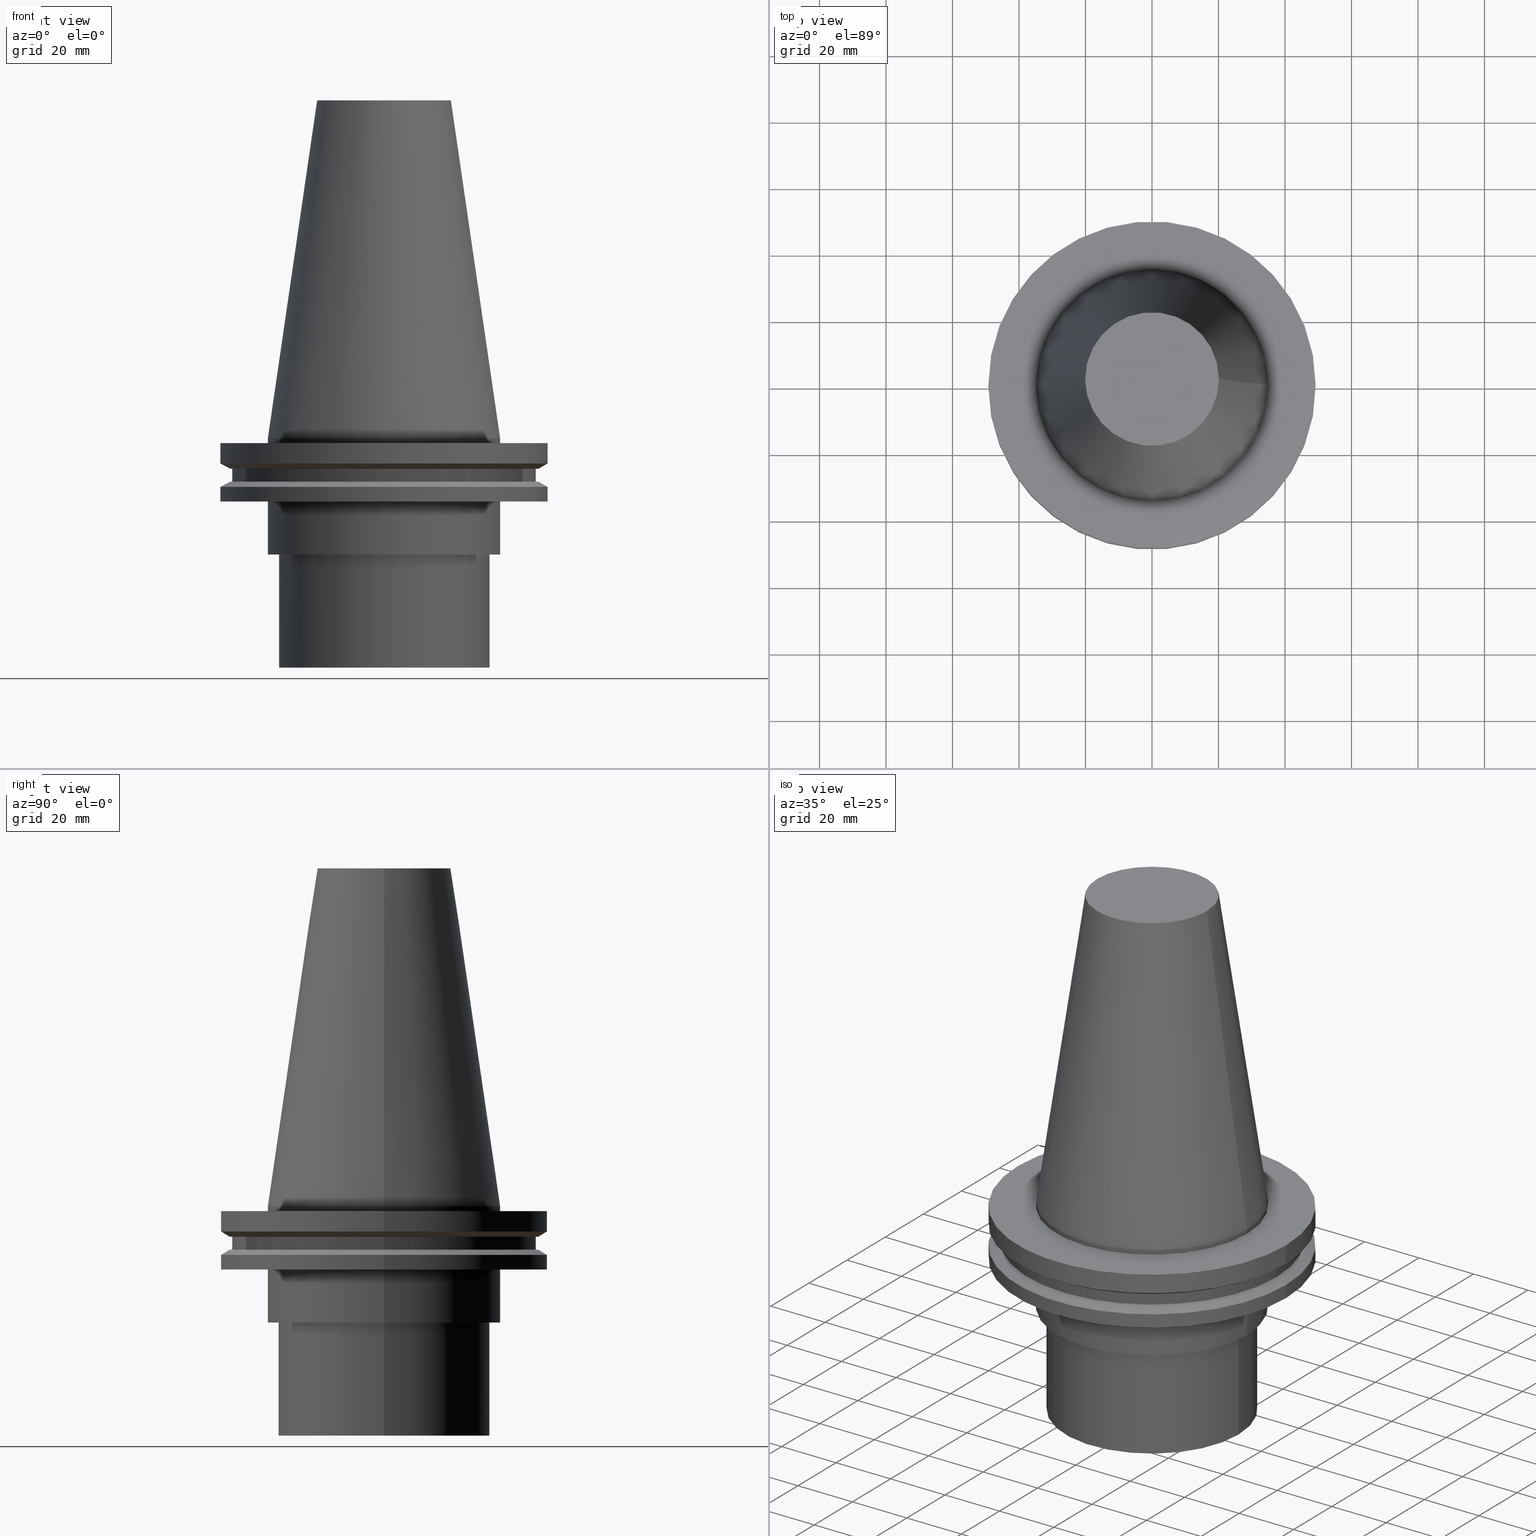
[diagram: canonical four-view strip — front | top / right | iso, engineering-drawing reading convention]
A machine part, canonical four-view strip (front | top / right | iso — engineering-drawing reading convention). The complete STEP part file that produces these views, byte-faithful:
ISO-10303-21;
HEADER;
FILE_DESCRIPTION (( 'STEP AP203' ),
    '1' );
FILE_NAME ('11.368.662N.stp',
    '2022-03-09T15:21:55',
    ( '' ),
    ( '' ),
    'SwSTEP 2.0',
    'SolidWorks 2021',
    '' );
FILE_SCHEMA (( 'CONFIG_CONTROL_DESIGN' ));
ENDSEC;

DATA;
#1 = DIRECTION ( 'NONE',  ( 1.000000000000000000, 0.000000000000000000, 0.000000000000000000 ) ) ;
#2 = CLOSED_SHELL ( 'NONE', ( #291, #19, #306, #176, #315, #102, #114, #87, #389, #361, #204, #362, #218, #357, #192, #34 ) ) ;
#3 = DIRECTION ( 'NONE',  ( -1.000000000000000000, 0.000000000000000000, -0.000000000000000000 ) ) ;
#4 = CARTESIAN_POINT ( 'NONE',  ( 0.000000000000000000, 46.43919780457007818, -9.204999999999998295 ) ) ;
#5 = AXIS2_PLACEMENT_3D ( 'NONE', #68, #184, #158 ) ;
#6 = EDGE_LOOP ( 'NONE', ( #42 ) ) ;
#7 = VERTEX_POINT ( 'NONE', #248 ) ;
#8 = AXIS2_PLACEMENT_3D ( 'NONE', #233, #394, #293 ) ;
#9 = DIRECTION ( 'NONE',  ( 1.000000000000000000, 0.000000000000000000, 0.000000000000000000 ) ) ;
#10 = VERTEX_POINT ( 'NONE', #140 ) ;
#11 = ORIENTED_EDGE ( 'NONE', *, *, #209, .F. ) ;
#12 = CC_DESIGN_DATE_AND_TIME_ASSIGNMENT ( #294, #327, ( #67 ) ) ;
#13 = VERTEX_POINT ( 'NONE', #253 ) ;
#14 = ORIENTED_EDGE ( 'NONE', *, *, #49, .F. ) ;
#15 = AXIS2_PLACEMENT_3D ( 'NONE', #266, #207, #65 ) ;
#16 = CARTESIAN_POINT ( 'NONE',  ( 49.21499999999998920, 0.000000000000000000, -14.65761014474876944 ) ) ;
#17 = ORIENTED_EDGE ( 'NONE', *, *, #385, .T. ) ;
#18 = VERTEX_POINT ( 'NONE', #197 ) ;
#19 = ADVANCED_FACE ( 'NONE', ( #134 ), #105, .F. ) ;
#20 = EDGE_LOOP ( 'NONE', ( #379 ) ) ;
#21 = CARTESIAN_POINT ( 'NONE',  ( 34.92499999999999716, 0.000000000000000000, -19.04999999999999716 ) ) ;
#22 = EDGE_LOOP ( 'NONE', ( #377 ) ) ;
#23 = AXIS2_PLACEMENT_3D ( 'NONE', #343, #79, #191 ) ;
#24 = CYLINDRICAL_SURFACE ( 'NONE', #77, 34.92499999999999716 ) ;
#25 = CALENDAR_DATE ( 2022, 9, 3 ) ;
#26 = CARTESIAN_POINT ( 'NONE',  ( 0.000000000000000000, 0.000000000000000000, -9.204999999999991189 ) ) ;
#27 = EDGE_CURVE ( 'NONE', #7, #7, #180, .T. ) ;
#28 = PERSON_AND_ORGANIZATION ( #47, #216 ) ;
#29 = EDGE_CURVE ( 'NONE', #367, #367, #313, .T. ) ;
#30 = CARTESIAN_POINT ( 'NONE',  ( 0.000000000000000000, 0.000000000000000000, -14.65761014474876944 ) ) ;
#31 = DIRECTION ( 'NONE',  ( -0.000000000000000000, -0.000000000000000000, 1.000000000000000000 ) ) ;
#32 = DATE_AND_TIME ( #199, #52 ) ;
#33 = FACE_BOUND ( 'NONE', #83, .T. ) ;
#34 = ADVANCED_FACE ( 'NONE', ( #194 ), #329, .F. ) ;
#35 = EDGE_CURVE ( 'NONE', #169, #169, #241, .T. ) ;
#36 = PRODUCT_DEFINITION_SHAPE ( 'NONE', 'NONE',  #395 ) ;
#37 = APPROVAL_PERSON_ORGANIZATION ( #132, #101, #371 ) ;
#38 = FACE_BOUND ( 'NONE', #173, .T. ) ;
#39 = DIRECTION ( 'NONE',  ( 1.000000000000000000, 0.000000000000000000, 0.000000000000000000 ) ) ;
#40 = AXIS2_PLACEMENT_3D ( 'NONE', #151, #115, #122 ) ;
#41 = CARTESIAN_POINT ( 'NONE',  ( 0.000000000000000000, 0.000000000000000000, -13.05499999999999794 ) ) ;
#42 = ORIENTED_EDGE ( 'NONE', *, *, #144, .T. ) ;
#43 = DIRECTION ( 'NONE',  ( -0.000000000000000000, -0.000000000000000000, 1.000000000000000000 ) ) ;
#44 = AXIS2_PLACEMENT_3D ( 'NONE', #311, #95, #246 ) ;
#45 = CARTESIAN_POINT ( 'NONE',  ( 0.000000000000000000, 0.000000000000000000, -35.00000000000000000 ) ) ;
#46 = AXIS2_PLACEMENT_3D ( 'NONE', #80, #322, #221 ) ;
#47 = PERSON ( 'UNSPECIFIED', 'UNSPECIFIED', 'UNSPECIFIED', ('UNSPECIFIED'), ('UNSPECIFIED'), ('UNSPECIFIED') ) ;
#48 = PERSON_AND_ORGANIZATION_ROLE ( 'design_owner' ) ;
#49 = EDGE_CURVE ( 'NONE', #374, #374, #112, .T. ) ;
#50 = PERSON_AND_ORGANIZATION ( #47, #216 ) ;
#51 = ORIENTED_EDGE ( 'NONE', *, *, #345, .T. ) ;
#52 = LOCAL_TIME ( 9, 21, 55.00000000000000000, #177 ) ;
#53 =( NAMED_UNIT ( * ) SI_UNIT ( $, .STERADIAN. ) SOLID_ANGLE_UNIT ( ) );
#54 = DIRECTION ( 'NONE',  ( 1.000000000000000000, 0.000000000000000000, 0.000000000000000000 ) ) ;
#55 = EDGE_LOOP ( 'NONE', ( #11 ) ) ;
#56 = APPLICATION_PROTOCOL_DEFINITION ( 'international standard', 'config_control_design', 1994, #99 ) ;
#57 = EDGE_LOOP ( 'NONE', ( #252 ) ) ;
#58 = EDGE_LOOP ( 'NONE', ( #141 ) ) ;
#59 = CONICAL_SURFACE ( 'NONE', #298, 46.43919780457007818, 1.047197551196575205 ) ;
#60 = FACE_BOUND ( 'NONE', #346, .T. ) ;
#61 = DIRECTION ( 'NONE',  ( 1.000000000000000000, 0.000000000000000000, 0.000000000000000000 ) ) ;
#62 = DIRECTION ( 'NONE',  ( 1.000000000000000000, 0.000000000000000000, 0.000000000000000000 ) ) ;
#63 = CIRCLE ( 'NONE', #347, 34.92499999999999716 ) ;
#64 = DIRECTION ( 'NONE',  ( 0.000000000000000000, -0.000000000000000000, 1.000000000000000000 ) ) ;
#65 = DIRECTION ( 'NONE',  ( 1.000000000000000000, 0.000000000000000000, 0.000000000000000000 ) ) ;
#66 = EDGE_CURVE ( 'NONE', #283, #283, #70, .T. ) ;
#67 = SECURITY_CLASSIFICATION ( '', '', #119 ) ;
#68 = CARTESIAN_POINT ( 'NONE',  ( 0.000000000000000000, 0.000000000000000000, 101.5999999999999801 ) ) ;
#69 = FACE_BOUND ( 'NONE', #280, .T. ) ;
#70 = CIRCLE ( 'NONE', #93, 34.92499999999999716 ) ;
#71 = ORIENTED_EDGE ( 'NONE', *, *, #273, .F. ) ;
#72 = CARTESIAN_POINT ( 'NONE',  ( 0.000000000000000000, 0.000000000000000000, 101.5999999999999943 ) ) ;
#73 = FACE_OUTER_BOUND ( 'NONE', #109, .T. ) ;
#74 = ORIENTED_EDGE ( 'NONE', *, *, #27, .F. ) ;
#75 = EDGE_CURVE ( 'NONE', #380, #380, #190, .T. ) ;
#76 =( NAMED_UNIT ( * ) PLANE_ANGLE_UNIT ( ) SI_UNIT ( $, .RADIAN. ) );
#77 = AXIS2_PLACEMENT_3D ( 'NONE', #297, #117, #118 ) ;
#78 = DATE_AND_TIME ( #342, #96 ) ;
#79 = DIRECTION ( 'NONE',  ( -0.000000000000000000, -0.000000000000000000, 1.000000000000000000 ) ) ;
#80 = CARTESIAN_POINT ( 'NONE',  ( 0.000000000000000000, 0.000000000000000000, -9.204999999999991189 ) ) ;
#81 = CIRCLE ( 'NONE', #5, 20.10819343178871321 ) ;
#82 = CARTESIAN_POINT ( 'NONE',  ( 49.21500000000000341, 0.000000000000000000, -7.602389855251287187 ) ) ;
#83 = EDGE_LOOP ( 'NONE', ( #143 ) ) ;
#84 = CIRCLE ( 'NONE', #145, 49.21499999999998920 ) ;
#85 = ORIENTED_EDGE ( 'NONE', *, *, #274, .T. ) ;
#86 = DIRECTION ( 'NONE',  ( 1.000000000000000000, 0.000000000000000000, 0.000000000000000000 ) ) ;
#87 = ADVANCED_FACE ( 'NONE', ( #94, #333 ), #236, .F. ) ;
#88 = CONICAL_SURFACE ( 'NONE', #355, 34.92499999999999005, 0.1448138465474119452 ) ;
#89 = PERSON_AND_ORGANIZATION_ROLE ( 'design_supplier' ) ;
#90 = CARTESIAN_POINT ( 'NONE',  ( 0.000000000000000000, 0.000000000000000000, -19.04999999999999716 ) ) ;
#91 = PLANE ( 'NONE',  #271 ) ;
#92 = CARTESIAN_POINT ( 'NONE',  ( 0.000000000000000000, 49.21499999999999631, -1.499999999999992895 ) ) ;
#93 = AXIS2_PLACEMENT_3D ( 'NONE', #175, #182, #201 ) ;
#94 = FACE_BOUND ( 'NONE', #344, .T. ) ;
#95 = DIRECTION ( 'NONE',  ( -0.000000000000000000, -0.000000000000000000, 1.000000000000000000 ) ) ;
#96 = LOCAL_TIME ( 9, 21, 55.00000000000000000, #220 ) ;
#97 = CARTESIAN_POINT ( 'NONE',  ( 0.000000000000000000, 49.21499999999998920, -19.04999999999999716 ) ) ;
#98 = DIRECTION ( 'NONE',  ( 0.000000000000000000, 0.000000000000000000, -1.000000000000000000 ) ) ;
#99 = APPLICATION_CONTEXT ( 'configuration controlled 3d designs of mechanical parts and assemblies' ) ;
#100 = DIRECTION ( 'NONE',  ( -0.000000000000000000, -0.000000000000000000, 1.000000000000000000 ) ) ;
#101 = APPROVAL ( #251, 'UNSPECIFIED' ) ;
#102 = ADVANCED_FACE ( 'NONE', ( #388, #120 ), #300, .T. ) ;
#103 = DIRECTION ( 'NONE',  ( 0.000000000000000000, 0.000000000000000000, -1.000000000000000000 ) ) ;
#104 = VERTEX_POINT ( 'NONE', #227 ) ;
#105 = PLANE ( 'NONE',  #208 ) ;
#106 = AXIS2_PLACEMENT_3D ( 'NONE', #131, #100, #338 ) ;
#107 = CARTESIAN_POINT ( 'NONE',  ( 34.92499999999999005, 0.000000000000000000, -1.499999999999987566 ) ) ;
#108 = ORIENTED_EDGE ( 'NONE', *, *, #66, .F. ) ;
#109 = EDGE_LOOP ( 'NONE', ( #324 ) ) ;
#110 = CARTESIAN_POINT ( 'NONE',  ( 46.43919780457007818, 0.000000000000000000, -13.05499999999999794 ) ) ;
#111 = EDGE_LOOP ( 'NONE', ( #139 ) ) ;
#112 = CIRCLE ( 'NONE', #8, 46.43919780457007818 ) ;
#113 = EDGE_LOOP ( 'NONE', ( #165 ) ) ;
#114 = ADVANCED_FACE ( 'NONE', ( #33, #153 ), #305, .T. ) ;
#115 = DIRECTION ( 'NONE',  ( -0.000000000000000000, -0.000000000000000000, 1.000000000000000000 ) ) ;
#116 = DATE_AND_TIME ( #392, #351 ) ;
#117 = DIRECTION ( 'NONE',  ( -0.000000000000000000, -0.000000000000000000, 1.000000000000000000 ) ) ;
#118 = DIRECTION ( 'NONE',  ( 1.000000000000000000, 0.000000000000000000, 0.000000000000000000 ) ) ;
#119 = SECURITY_CLASSIFICATION_LEVEL ( 'unclassified' ) ;
#120 = FACE_OUTER_BOUND ( 'NONE', #57, .T. ) ;
#121 = PERSON_AND_ORGANIZATION ( #47, #216 ) ;
#122 = DIRECTION ( 'NONE',  ( 1.000000000000000000, 0.000000000000000000, 0.000000000000000000 ) ) ;
#123 = AXIS2_PLACEMENT_3D ( 'NONE', #210, #64, #62 ) ;
#124 = FACE_OUTER_BOUND ( 'NONE', #368, .T. ) ;
#125 = CC_DESIGN_PERSON_AND_ORGANIZATION_ASSIGNMENT ( #121, #296, ( #67 ) ) ;
#126 = CARTESIAN_POINT ( 'NONE',  ( 0.000000000000000000, 34.92499999999999716, -35.00000000000000000 ) ) ;
#127 = DIRECTION ( 'NONE',  ( -0.000000000000000000, -0.000000000000000000, 1.000000000000000000 ) ) ;
#128 = DIRECTION ( 'NONE',  ( 1.000000000000000000, 0.000000000000000000, 0.000000000000000000 ) ) ;
#129 = AXIS2_PLACEMENT_3D ( 'NONE', #391, #203, #61 ) ;
#130 = CC_DESIGN_PERSON_AND_ORGANIZATION_ASSIGNMENT ( #142, #48, ( #309 ) ) ;
#131 = CARTESIAN_POINT ( 'NONE',  ( 0.000000000000000000, 0.000000000000000000, -1.499999999999987566 ) ) ;
#132 = PERSON_AND_ORGANIZATION ( #47, #216 ) ;
#133 = APPROVAL_PERSON_ORGANIZATION ( #383, #243, #267 ) ;
#134 = FACE_OUTER_BOUND ( 'NONE', #195, .T. ) ;
#135 = VERTEX_POINT ( 'NONE', #107 ) ;
#136 = ORIENTED_EDGE ( 'NONE', *, *, #290, .T. ) ;
#137 = AXIS2_PLACEMENT_3D ( 'NONE', #147, #387, #295 ) ;
#138 = CARTESIAN_POINT ( 'NONE',  ( 31.75000000000000000, 0.000000000000000000, -35.00000000000000000 ) ) ;
#139 = ORIENTED_EDGE ( 'NONE', *, *, #29, .F. ) ;
#140 = CARTESIAN_POINT ( 'NONE',  ( 34.92499999999999716, 0.000000000000000000, -35.00000000000000000 ) ) ;
#141 = ORIENTED_EDGE ( 'NONE', *, *, #273, .T. ) ;
#142 = PERSON_AND_ORGANIZATION ( #47, #216 ) ;
#143 = ORIENTED_EDGE ( 'NONE', *, *, #290, .F. ) ;
#144 = EDGE_CURVE ( 'NONE', #314, #314, #84, .T. ) ;
#145 = AXIS2_PLACEMENT_3D ( 'NONE', #30, #330, #240 ) ;
#146 = DIRECTION ( 'NONE',  ( -1.000000000000000000, 0.000000000000000000, -0.000000000000000000 ) ) ;
#147 = CARTESIAN_POINT ( 'NONE',  ( 0.000000000000000000, 0.000000000000000000, -14.65761014474876944 ) ) ;
#148 = CC_DESIGN_SECURITY_CLASSIFICATION ( #67, ( #302 ) ) ;
#149 = APPROVAL ( #181, 'UNSPECIFIED' ) ;
#150 = PERSON_AND_ORGANIZATION ( #47, #216 ) ;
#151 = CARTESIAN_POINT ( 'NONE',  ( 0.000000000000000000, 0.000000000000000000, -35.00000000000000000 ) ) ;
#152 = DATE_AND_TIME ( #299, #370 ) ;
#153 = FACE_OUTER_BOUND ( 'NONE', #6, .T. ) ;
#154 = FACE_OUTER_BOUND ( 'NONE', #317, .T. ) ;
#155 = CC_DESIGN_APPROVAL ( #101, ( #395 ) ) ;
#156 = FACE_BOUND ( 'NONE', #198, .T. ) ;
#157 = CIRCLE ( 'NONE', #202, 46.43919780457007818 ) ;
#158 = DIRECTION ( 'NONE',  ( 1.000000000000000000, 0.000000000000000000, 0.000000000000000000 ) ) ;
#159 = DIRECTION ( 'NONE',  ( 1.000000000000000000, 0.000000000000000000, 0.000000000000000000 ) ) ;
#160 = CARTESIAN_POINT ( 'NONE',  ( 0.000000000000000000, 0.000000000000000000, -7.602389855251287187 ) ) ;
#161 = DIRECTION ( 'NONE',  ( -0.000000000000000000, -0.000000000000000000, 1.000000000000000000 ) ) ;
#162 = DESIGN_CONTEXT ( 'detailed design', #381, 'design' ) ;
#163 = APPLICATION_PROTOCOL_DEFINITION ( 'international standard', 'config_control_design', 1994, #381 ) ;
#164 = PERSON_AND_ORGANIZATION_ROLE ( 'creator' ) ;
#165 = ORIENTED_EDGE ( 'NONE', *, *, #209, .T. ) ;
#166 = CC_DESIGN_PERSON_AND_ORGANIZATION_ASSIGNMENT ( #28, #89, ( #302 ) ) ;
#167 = EDGE_LOOP ( 'NONE', ( #136 ) ) ;
#168 = ORIENTED_EDGE ( 'NONE', *, *, #385, .F. ) ;
#169 = VERTEX_POINT ( 'NONE', #255 ) ;
#170 = DIRECTION ( 'NONE',  ( 0.000000000000000000, 0.000000000000000000, -1.000000000000000000 ) ) ;
#171 =( GEOMETRIC_REPRESENTATION_CONTEXT ( 3 ) GLOBAL_UNCERTAINTY_ASSIGNED_CONTEXT ( ( #341 ) ) GLOBAL_UNIT_ASSIGNED_CONTEXT ( ( #285, #76, #53 ) ) REPRESENTATION_CONTEXT ( 'NONE', 'WORKASPACE' ) );
#172 = EDGE_CURVE ( 'NONE', #18, #18, #373, .T. ) ;
#173 = EDGE_LOOP ( 'NONE', ( #200 ) ) ;
#174 = AXIS2_PLACEMENT_3D ( 'NONE', #239, #264, #146 ) ;
#175 = CARTESIAN_POINT ( 'NONE',  ( 0.000000000000000000, 0.000000000000000000, -19.04999999999999716 ) ) ;
#176 = ADVANCED_FACE ( 'NONE', ( #325, #353 ), #24, .T. ) ;
#177 = COORDINATED_UNIVERSAL_TIME_OFFSET ( 6, 0, .BEHIND. ) ;
#178 = FACE_BOUND ( 'NONE', #20, .T. ) ;
#179 = DIRECTION ( 'NONE',  ( -0.000000000000000000, -0.000000000000000000, 1.000000000000000000 ) ) ;
#180 = CIRCLE ( 'NONE', #46, 45.64500000000000313 ) ;
#181 = APPROVAL_STATUS ( 'not_yet_approved' ) ;
#182 = DIRECTION ( 'NONE',  ( -0.000000000000000000, -0.000000000000000000, 1.000000000000000000 ) ) ;
#183 = CYLINDRICAL_SURFACE ( 'NONE', #44, 34.92499999999999005 ) ;
#184 = DIRECTION ( 'NONE',  ( -0.000000000000000000, -0.000000000000000000, 1.000000000000000000 ) ) ;
#185 = AXIS2_PLACEMENT_3D ( 'NONE', #126, #186, #217 ) ;
#186 = DIRECTION ( 'NONE',  ( 0.000000000000000000, -0.000000000000000000, 1.000000000000000000 ) ) ;
#187 = DIRECTION ( 'NONE',  ( -1.000000000000000000, 0.000000000000000000, 0.000000000000000000 ) ) ;
#188 = FACE_OUTER_BOUND ( 'NONE', #284, .T. ) ;
#189 = CARTESIAN_POINT ( 'NONE',  ( 34.92499999999999005, 0.000000000000000000, 0.000000000000000000 ) ) ;
#190 = CIRCLE ( 'NONE', #40, 31.75000000000000000 ) ;
#191 = DIRECTION ( 'NONE',  ( 1.000000000000000000, 0.000000000000000000, 0.000000000000000000 ) ) ;
#192 = ADVANCED_FACE ( 'NONE', ( #154, #262 ), #268, .T. ) ;
#193 = COORDINATED_UNIVERSAL_TIME_OFFSET ( 6, 0, .BEHIND. ) ;
#194 = FACE_OUTER_BOUND ( 'NONE', #55, .T. ) ;
#195 = EDGE_LOOP ( 'NONE', ( #17 ) ) ;
#196 = PRODUCT_RELATED_PRODUCT_CATEGORY ( 'detail', '', ( #309 ) ) ;
#197 = CARTESIAN_POINT ( 'NONE',  ( 49.21499999999999631, 0.000000000000000000, -1.499999999999987566 ) ) ;
#198 = EDGE_LOOP ( 'NONE', ( #223 ) ) ;
#199 = CALENDAR_DATE ( 2022, 9, 3 ) ;
#200 = ORIENTED_EDGE ( 'NONE', *, *, #75, .T. ) ;
#201 = DIRECTION ( 'NONE',  ( 1.000000000000000000, 0.000000000000000000, 0.000000000000000000 ) ) ;
#202 = AXIS2_PLACEMENT_3D ( 'NONE', #211, #161, #9 ) ;
#203 = DIRECTION ( 'NONE',  ( -0.000000000000000000, -0.000000000000000000, 1.000000000000000000 ) ) ;
#204 = ADVANCED_FACE ( 'NONE', ( #237, #60 ), #59, .T. ) ;
#205 = DIRECTION ( 'NONE',  ( 1.000000000000000000, 0.000000000000000000, 0.000000000000000000 ) ) ;
#206 = APPROVAL_DATE_TIME ( #32, #149 ) ;
#207 = DIRECTION ( 'NONE',  ( -0.000000000000000000, -0.000000000000000000, 1.000000000000000000 ) ) ;
#208 = AXIS2_PLACEMENT_3D ( 'NONE', #228, #170, #349 ) ;
#209 = EDGE_CURVE ( 'NONE', #13, #13, #331, .T. ) ;
#210 = CARTESIAN_POINT ( 'NONE',  ( 0.000000000000000000, 31.75000000000000000, -69.00000000000000000 ) ) ;
#211 = CARTESIAN_POINT ( 'NONE',  ( 0.000000000000000000, 0.000000000000000000, -13.05499999999999794 ) ) ;
#212 = LOCAL_TIME ( 9, 21, 55.00000000000000000, #292 ) ;
#213 = FACE_OUTER_BOUND ( 'NONE', #288, .T. ) ;
#214 = FACE_OUTER_BOUND ( 'NONE', #382, .T. ) ;
#215 = DIRECTION ( 'NONE',  ( -0.000000000000000000, -0.000000000000000000, 1.000000000000000000 ) ) ;
#216 = ORGANIZATION ( 'UNSPECIFIED', 'UNSPECIFIED', '' ) ;
#217 = DIRECTION ( 'NONE',  ( 1.000000000000000000, 0.000000000000000000, 0.000000000000000000 ) ) ;
#218 = ADVANCED_FACE ( 'NONE', ( #178, #359 ), #91, .F. ) ;
#219 = CC_DESIGN_DATE_AND_TIME_ASSIGNMENT ( #152, #265, ( #395 ) ) ;
#220 = COORDINATED_UNIVERSAL_TIME_OFFSET ( 6, 0, .BEHIND. ) ;
#221 = DIRECTION ( 'NONE',  ( 1.000000000000000000, 0.000000000000000000, 0.000000000000000000 ) ) ;
#222 = VERTEX_POINT ( 'NONE', #348 ) ;
#223 = ORIENTED_EDGE ( 'NONE', *, *, #66, .T. ) ;
#224 = AXIS2_PLACEMENT_3D ( 'NONE', #242, #334, #244 ) ;
#225 = EDGE_LOOP ( 'NONE', ( #276 ) ) ;
#226 = EDGE_CURVE ( 'NONE', #135, #135, #340, .T. ) ;
#227 = CARTESIAN_POINT ( 'NONE',  ( 45.64500000000000313, 0.000000000000000000, -13.05499999999999794 ) ) ;
#228 = CARTESIAN_POINT ( 'NONE',  ( 0.000000000000000000, 20.10819343178871321, 101.5999999999999943 ) ) ;
#229 = AXIS2_PLACEMENT_3D ( 'NONE', #289, #179, #356 ) ;
#230 = DIRECTION ( 'NONE',  ( 0.000000000000000000, 0.000000000000000000, 1.000000000000000000 ) ) ;
#231 = ORIENTED_EDGE ( 'NONE', *, *, #49, .T. ) ;
#232 = APPROVAL_DATE_TIME ( #116, #243 ) ;
#233 = CARTESIAN_POINT ( 'NONE',  ( 0.000000000000000000, 0.000000000000000000, -9.204999999999991189 ) ) ;
#234 = CC_DESIGN_APPROVAL ( #243, ( #302 ) ) ;
#235 = CC_DESIGN_PERSON_AND_ORGANIZATION_ASSIGNMENT ( #238, #352, ( #302 ) ) ;
#236 = PLANE ( 'NONE',  #174 ) ;
#237 = FACE_OUTER_BOUND ( 'NONE', #256, .T. ) ;
#238 = PERSON_AND_ORGANIZATION ( #47, #216 ) ;
#239 = CARTESIAN_POINT ( 'NONE',  ( 0.000000000000000000, 45.64500000000000313, -13.05499999999999794 ) ) ;
#240 = DIRECTION ( 'NONE',  ( 1.000000000000000000, 0.000000000000000000, 0.000000000000000000 ) ) ;
#241 = CIRCLE ( 'NONE', #260, 49.21499999999998920 ) ;
#242 = CARTESIAN_POINT ( 'NONE',  ( 0.000000000000000000, 0.000000000000000000, 101.5999999999999943 ) ) ;
#243 = APPROVAL ( #390, 'UNSPECIFIED' ) ;
#244 = DIRECTION ( 'NONE',  ( 1.000000000000000000, 0.000000000000000000, 0.000000000000000000 ) ) ;
#245 = CIRCLE ( 'NONE', #310, 45.64500000000000313 ) ;
#246 = DIRECTION ( 'NONE',  ( 1.000000000000000000, 0.000000000000000000, 0.000000000000000000 ) ) ;
#247 = AXIS2_PLACEMENT_3D ( 'NONE', #384, #328, #86 ) ;
#248 = CARTESIAN_POINT ( 'NONE',  ( 45.64500000000000313, 0.000000000000000000, -9.204999999999991189 ) ) ;
#249 = EDGE_LOOP ( 'NONE', ( #74 ) ) ;
#250 = CARTESIAN_POINT ( 'NONE',  ( 0.000000000000000000, 0.000000000000000000, 0.000000000000000000 ) ) ;
#251 = APPROVAL_STATUS ( 'not_yet_approved' ) ;
#252 = ORIENTED_EDGE ( 'NONE', *, *, #35, .T. ) ;
#253 = CARTESIAN_POINT ( 'NONE',  ( 31.75000000000000000, 0.000000000000000000, -69.00000000000000000 ) ) ;
#254 = ORIENTED_EDGE ( 'NONE', *, *, #345, .F. ) ;
#255 = CARTESIAN_POINT ( 'NONE',  ( 49.21499999999998920, 0.000000000000000000, -19.04999999999999716 ) ) ;
#256 = EDGE_LOOP ( 'NONE', ( #71 ) ) ;
#257 = VERTEX_POINT ( 'NONE', #110 ) ;
#258 = ORIENTED_EDGE ( 'NONE', *, *, #172, .T. ) ;
#259 = EDGE_LOOP ( 'NONE', ( #85 ) ) ;
#260 = AXIS2_PLACEMENT_3D ( 'NONE', #90, #31, #205 ) ;
#261 = APPROVAL_ROLE ( '' ) ;
#262 = FACE_OUTER_BOUND ( 'NONE', #113, .T. ) ;
#263 = CC_DESIGN_APPROVAL ( #149, ( #67 ) ) ;
#264 = DIRECTION ( 'NONE',  ( 0.000000000000000000, 0.000000000000000000, -1.000000000000000000 ) ) ;
#265 = DATE_TIME_ROLE ( 'creation_date' ) ;
#266 = CARTESIAN_POINT ( 'NONE',  ( 0.000000000000000000, 0.000000000000000000, 101.5999999999999943 ) ) ;
#267 = APPROVAL_ROLE ( '' ) ;
#268 = CYLINDRICAL_SURFACE ( 'NONE', #247, 31.75000000000000000 ) ;
#269 = AXIS2_PLACEMENT_3D ( 'NONE', #320, #230, #54 ) ;
#270 = FACE_OUTER_BOUND ( 'NONE', #111, .T. ) ;
#271 = AXIS2_PLACEMENT_3D ( 'NONE', #92, #98, #3 ) ;
#272 = CYLINDRICAL_SURFACE ( 'NONE', #224, 49.21499999999999631 ) ;
#273 = EDGE_CURVE ( 'NONE', #376, #376, #278, .T. ) ;
#274 = EDGE_CURVE ( 'NONE', #10, #10, #63, .T. ) ;
#275 = DIRECTION ( 'NONE',  ( 0.000000000000000000, -0.000000000000000000, 1.000000000000000000 ) ) ;
#276 = ORIENTED_EDGE ( 'NONE', *, *, #144, .F. ) ;
#277 = DIRECTION ( 'NONE',  ( 1.000000000000000000, 0.000000000000000000, 0.000000000000000000 ) ) ;
#278 = CIRCLE ( 'NONE', #326, 49.21500000000000341 ) ;
#279 = DIRECTION ( 'NONE',  ( 1.000000000000000000, 0.000000000000000000, 0.000000000000000000 ) ) ;
#280 = EDGE_LOOP ( 'NONE', ( #168 ) ) ;
#281 = MECHANICAL_CONTEXT ( 'NONE', #99, 'mechanical' ) ;
#282 = APPROVAL_PERSON_ORGANIZATION ( #150, #149, #261 ) ;
#283 = VERTEX_POINT ( 'NONE', #21 ) ;
#284 = EDGE_LOOP ( 'NONE', ( #372 ) ) ;
#285 =( LENGTH_UNIT ( ) NAMED_UNIT ( * ) SI_UNIT ( .MILLI., .METRE. ) );
#286 = AXIS2_PLACEMENT_3D ( 'NONE', #97, #275, #39 ) ;
#287 = ORIENTED_EDGE ( 'NONE', *, *, #172, .F. ) ;
#288 = EDGE_LOOP ( 'NONE', ( #14 ) ) ;
#289 = CARTESIAN_POINT ( 'NONE',  ( 0.000000000000000000, 0.000000000000000000, -1.499999999999987566 ) ) ;
#290 = EDGE_CURVE ( 'NONE', #257, #257, #157, .T. ) ;
#291 = ADVANCED_FACE ( 'NONE', ( #69, #303 ), #88, .T. ) ;
#292 = COORDINATED_UNIVERSAL_TIME_OFFSET ( 6, 0, .BEHIND. ) ;
#293 = DIRECTION ( 'NONE',  ( 1.000000000000000000, 0.000000000000000000, 0.000000000000000000 ) ) ;
#294 = DATE_AND_TIME ( #25, #212 ) ;
#295 = DIRECTION ( 'NONE',  ( -1.000000000000000000, 0.000000000000000000, 0.000000000000000000 ) ) ;
#296 = PERSON_AND_ORGANIZATION_ROLE ( 'classification_officer' ) ;
#297 = CARTESIAN_POINT ( 'NONE',  ( 0.000000000000000000, 0.000000000000000000, 101.5999999999999943 ) ) ;
#298 = AXIS2_PLACEMENT_3D ( 'NONE', #26, #360, #354 ) ;
#299 = CALENDAR_DATE ( 2022, 9, 3 ) ;
#300 = CYLINDRICAL_SURFACE ( 'NONE', #15, 49.21499999999998920 ) ;
#301 = FACE_BOUND ( 'NONE', #22, .T. ) ;
#302 = PRODUCT_DEFINITION_FORMATION_WITH_SPECIFIED_SOURCE ( 'ANY', '', #309, .NOT_KNOWN. ) ;
#303 = FACE_OUTER_BOUND ( 'NONE', #375, .T. ) ;
#304 = EDGE_LOOP ( 'NONE', ( #108 ) ) ;
#305 = CONICAL_SURFACE ( 'NONE', #137, 49.21499999999998920, 1.047197551196554333 ) ;
#306 = ADVANCED_FACE ( 'NONE', ( #38, #73 ), #339, .F. ) ;
#307 = PLANE ( 'NONE',  #286 ) ;
#308 = DIRECTION ( 'NONE',  ( 0.000000000000000000, -0.000000000000000000, 1.000000000000000000 ) ) ;
#309 = PRODUCT ( '11.368.662N', '11.368.662N', '', ( #281 ) ) ;
#310 = AXIS2_PLACEMENT_3D ( 'NONE', #41, #215, #279 ) ;
#311 = CARTESIAN_POINT ( 'NONE',  ( 0.000000000000000000, 0.000000000000000000, 101.5999999999999943 ) ) ;
#312 = ORIENTED_EDGE ( 'NONE', *, *, #35, .F. ) ;
#313 = CIRCLE ( 'NONE', #23, 34.92499999999999005 ) ;
#314 = VERTEX_POINT ( 'NONE', #16 ) ;
#315 = ADVANCED_FACE ( 'NONE', ( #363, #156 ), #307, .F. ) ;
#316 = APPROVAL_DATE_TIME ( #78, #101 ) ;
#317 = EDGE_LOOP ( 'NONE', ( #319 ) ) ;
#318 = CC_DESIGN_PERSON_AND_ORGANIZATION_ASSIGNMENT ( #50, #164, ( #395 ) ) ;
#319 = ORIENTED_EDGE ( 'NONE', *, *, #75, .F. ) ;
#320 = CARTESIAN_POINT ( 'NONE',  ( 0.000000000000000000, 0.000000000000000000, 0.000000000000000000 ) ) ;
#321 = ORIENTED_EDGE ( 'NONE', *, *, #29, .T. ) ;
#322 = DIRECTION ( 'NONE',  ( -0.000000000000000000, -0.000000000000000000, 1.000000000000000000 ) ) ;
#323 = SHAPE_DEFINITION_REPRESENTATION ( #36, #365 ) ;
#324 = ORIENTED_EDGE ( 'NONE', *, *, #274, .F. ) ;
#325 = FACE_OUTER_BOUND ( 'NONE', #304, .T. ) ;
#326 = AXIS2_PLACEMENT_3D ( 'NONE', #160, #127, #128 ) ;
#327 = DATE_TIME_ROLE ( 'classification_date' ) ;
#328 = DIRECTION ( 'NONE',  ( -0.000000000000000000, -0.000000000000000000, 1.000000000000000000 ) ) ;
#329 = PLANE ( 'NONE',  #123 ) ;
#330 = DIRECTION ( 'NONE',  ( -0.000000000000000000, -0.000000000000000000, 1.000000000000000000 ) ) ;
#331 = CIRCLE ( 'NONE', #129, 31.75000000000000000 ) ;
#332 = MANIFOLD_SOLID_BREP ( 'CKB', #2 ) ;
#333 = FACE_OUTER_BOUND ( 'NONE', #167, .T. ) ;
#334 = DIRECTION ( 'NONE',  ( -0.000000000000000000, -0.000000000000000000, 1.000000000000000000 ) ) ;
#335 = EDGE_LOOP ( 'NONE', ( #312 ) ) ;
#336 = FACE_OUTER_BOUND ( 'NONE', #58, .T. ) ;
#337 = CYLINDRICAL_SURFACE ( 'NONE', #358, 45.64500000000000313 ) ;
#338 = DIRECTION ( 'NONE',  ( 1.000000000000000000, 0.000000000000000000, 0.000000000000000000 ) ) ;
#339 = PLANE ( 'NONE',  #185 ) ;
#340 = CIRCLE ( 'NONE', #106, 34.92499999999999005 ) ;
#341 = UNCERTAINTY_MEASURE_WITH_UNIT (LENGTH_MEASURE( 1.000000000000000082E-05 ), #285, 'distance_accuracy_value', 'NONE');
#342 = CALENDAR_DATE ( 2022, 9, 3 ) ;
#343 = CARTESIAN_POINT ( 'NONE',  ( 0.000000000000000000, 0.000000000000000000, 0.000000000000000000 ) ) ;
#344 = EDGE_LOOP ( 'NONE', ( #254 ) ) ;
#345 = EDGE_CURVE ( 'NONE', #104, #104, #245, .T. ) ;
#346 = EDGE_LOOP ( 'NONE', ( #231 ) ) ;
#347 = AXIS2_PLACEMENT_3D ( 'NONE', #45, #369, #159 ) ;
#348 = CARTESIAN_POINT ( 'NONE',  ( 20.10819343178871321, 0.000000000000000000, 101.5999999999999801 ) ) ;
#349 = DIRECTION ( 'NONE',  ( -1.000000000000000000, 0.000000000000000000, -0.000000000000000000 ) ) ;
#350 = EDGE_LOOP ( 'NONE', ( #258 ) ) ;
#351 = LOCAL_TIME ( 9, 21, 55.00000000000000000, #386 ) ;
#352 = PERSON_AND_ORGANIZATION_ROLE ( 'creator' ) ;
#353 = FACE_OUTER_BOUND ( 'NONE', #259, .T. ) ;
#354 = DIRECTION ( 'NONE',  ( 1.000000000000000000, 0.000000000000000000, 0.000000000000000000 ) ) ;
#355 = AXIS2_PLACEMENT_3D ( 'NONE', #250, #103, #187 ) ;
#356 = DIRECTION ( 'NONE',  ( 1.000000000000000000, 0.000000000000000000, 0.000000000000000000 ) ) ;
#357 = ADVANCED_FACE ( 'NONE', ( #270, #188 ), #183, .T. ) ;
#358 = AXIS2_PLACEMENT_3D ( 'NONE', #72, #43, #277 ) ;
#359 = FACE_OUTER_BOUND ( 'NONE', #350, .T. ) ;
#360 = DIRECTION ( 'NONE',  ( -0.000000000000000000, -0.000000000000000000, 1.000000000000000000 ) ) ;
#361 = ADVANCED_FACE ( 'NONE', ( #213, #301 ), #366, .F. ) ;
#362 = ADVANCED_FACE ( 'NONE', ( #124, #336 ), #272, .T. ) ;
#363 = FACE_OUTER_BOUND ( 'NONE', #335, .T. ) ;
#364 = FACE_OUTER_BOUND ( 'NONE', #249, .T. ) ;
#365 = ADVANCED_BREP_SHAPE_REPRESENTATION ( '11.368.662N', ( #332, #269 ), #171 ) ;
#366 = PLANE ( 'NONE',  #393 ) ;
#367 = VERTEX_POINT ( 'NONE', #189 ) ;
#368 = EDGE_LOOP ( 'NONE', ( #287 ) ) ;
#369 = DIRECTION ( 'NONE',  ( -0.000000000000000000, -0.000000000000000000, 1.000000000000000000 ) ) ;
#370 = LOCAL_TIME ( 9, 21, 55.00000000000000000, #193 ) ;
#371 = APPROVAL_ROLE ( '' ) ;
#372 = ORIENTED_EDGE ( 'NONE', *, *, #226, .T. ) ;
#373 = CIRCLE ( 'NONE', #229, 49.21499999999999631 ) ;
#374 = VERTEX_POINT ( 'NONE', #378 ) ;
#375 = EDGE_LOOP ( 'NONE', ( #321 ) ) ;
#376 = VERTEX_POINT ( 'NONE', #82 ) ;
#377 = ORIENTED_EDGE ( 'NONE', *, *, #27, .T. ) ;
#378 = CARTESIAN_POINT ( 'NONE',  ( 46.43919780457007818, 0.000000000000000000, -9.204999999999991189 ) ) ;
#379 = ORIENTED_EDGE ( 'NONE', *, *, #226, .F. ) ;
#380 = VERTEX_POINT ( 'NONE', #138 ) ;
#381 = APPLICATION_CONTEXT ( 'configuration controlled 3d designs of mechanical parts and assemblies' ) ;
#382 = EDGE_LOOP ( 'NONE', ( #51 ) ) ;
#383 = PERSON_AND_ORGANIZATION ( #47, #216 ) ;
#384 = CARTESIAN_POINT ( 'NONE',  ( 0.000000000000000000, 0.000000000000000000, 0.000000000000000000 ) ) ;
#385 = EDGE_CURVE ( 'NONE', #222, #222, #81, .T. ) ;
#386 = COORDINATED_UNIVERSAL_TIME_OFFSET ( 6, 0, .BEHIND. ) ;
#387 = DIRECTION ( 'NONE',  ( 0.000000000000000000, 0.000000000000000000, -1.000000000000000000 ) ) ;
#388 = FACE_OUTER_BOUND ( 'NONE', #225, .T. ) ;
#389 = ADVANCED_FACE ( 'NONE', ( #364, #214 ), #337, .T. ) ;
#390 = APPROVAL_STATUS ( 'not_yet_approved' ) ;
#391 = CARTESIAN_POINT ( 'NONE',  ( 0.000000000000000000, 0.000000000000000000, -69.00000000000000000 ) ) ;
#392 = CALENDAR_DATE ( 2022, 9, 3 ) ;
#393 = AXIS2_PLACEMENT_3D ( 'NONE', #4, #308, #1 ) ;
#394 = DIRECTION ( 'NONE',  ( -0.000000000000000000, -0.000000000000000000, 1.000000000000000000 ) ) ;
#395 = PRODUCT_DEFINITION ( 'UNKNOWN', '', #302, #162 ) ;
ENDSEC;
END-ISO-10303-21;
